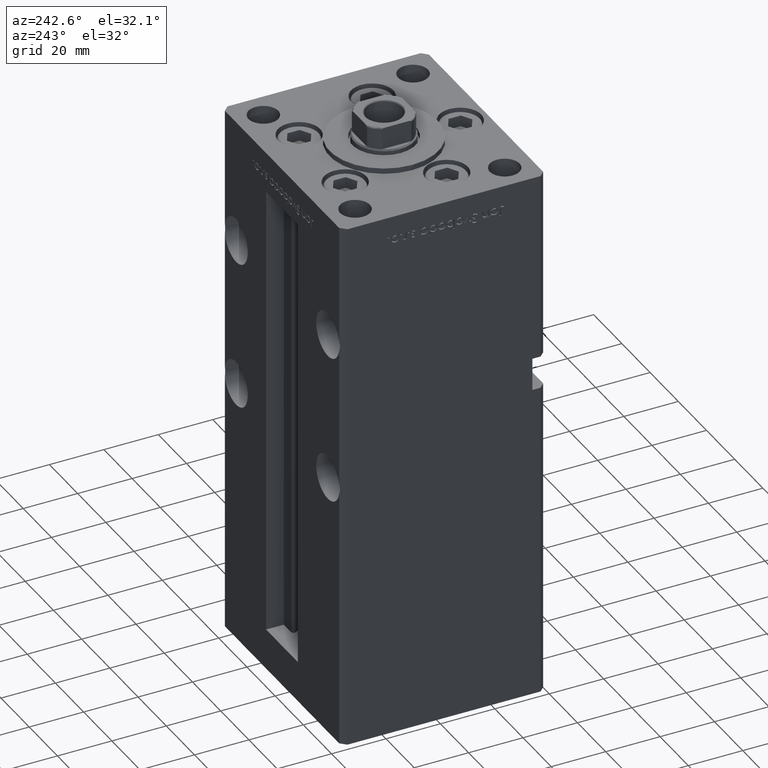
[diagram: clean part render]
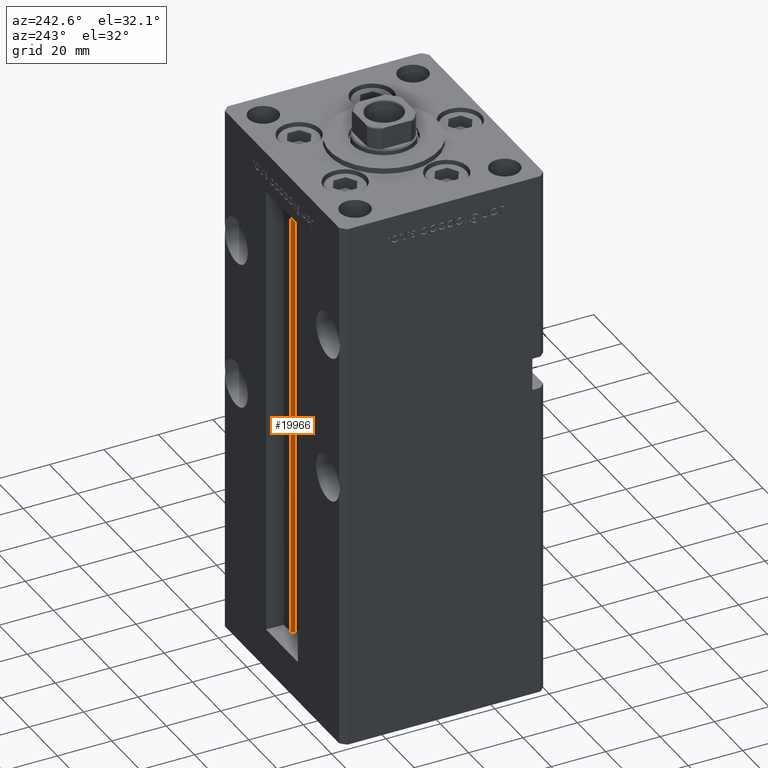
[diagram: same view with one face highlighted and labeled with its STEP entity id]
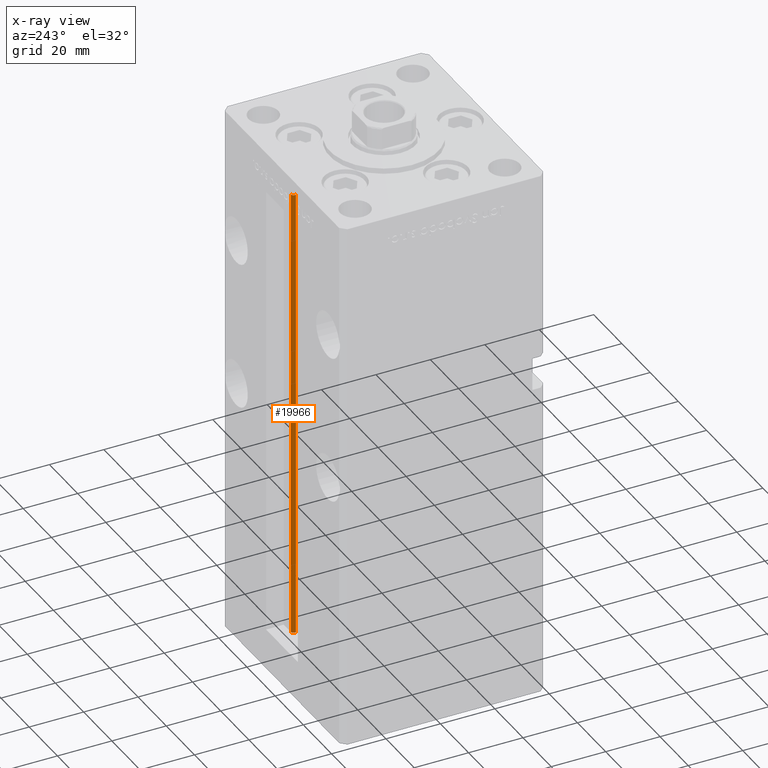
[diagram: x-ray of the same camera — body ghosted, the highlighted face saturated]
A machine part, auxiliary view. The second image highlights one B-rep face of the part: STEP entity #19966.
The next image is the same camera in x-ray: the body ghosted, the highlighted face saturated — about 0% of this face is hidden behind the body in this view.
In plain terms, the highlighted cylindrical surface (edge-blend (fillet) strip) has radius 0.9333 mm, axis along (0, 0, 1).
Its self-contained STEP definition (entity closure, byte-faithful):
#1054 = VECTOR ( 'NONE', #45562, 1000.000000000000000 ) ;
#6681 = ORIENTED_EDGE ( 'NONE', *, *, #42945, .F. ) ;
#6764 = DIRECTION ( 'NONE',  ( 1.000000000000000000, 0.000000000000000000, 0.000000000000000000 ) ) ;
#12728 = LINE ( 'NONE', #29146, #1054 ) ;
#13942 = DIRECTION ( 'NONE',  ( -0.000000000000000000, -0.000000000000000000, 1.000000000000000000 ) ) ;
#15032 = CARTESIAN_POINT ( 'NONE',  ( 6.183333333333997928, 31.00000000000000000, 168.5000000000000000 ) ) ;
#17983 = VECTOR ( 'NONE', #42470, 1000.000000000000000 ) ;
#18089 = DIRECTION ( 'NONE',  ( -0.000000000000000000, -0.000000000000000000, -1.000000000000000000 ) ) ;
#18264 = VERTEX_POINT ( 'NONE', #43700 ) ;
#18995 = ORIENTED_EDGE ( 'NONE', *, *, #28971, .T. ) ;
#19313 = VERTEX_POINT ( 'NONE', #36977 ) ;
#19966 = ADVANCED_FACE ( 'NONE', ( #23346 ), #39757, .T. ) ;
#20917 = CIRCLE ( 'NONE', #26936, 0.9333333333340008142 ) ;
#22094 = AXIS2_PLACEMENT_3D ( 'NONE', #42064, #18089, #34513 ) ;
#22754 = EDGE_CURVE ( 'NONE', #18264, #19313, #44395, .T. ) ;
#23346 = FACE_OUTER_BOUND ( 'NONE', #24496, .T. ) ;
#24496 = EDGE_LOOP ( 'NONE', ( #6681, #24881, #18995, #34771 ) ) ;
#24602 = VERTEX_POINT ( 'NONE', #29022 ) ;
#24881 = ORIENTED_EDGE ( 'NONE', *, *, #22754, .F. ) ;
#26333 = VERTEX_POINT ( 'NONE', #15032 ) ;
#26936 = AXIS2_PLACEMENT_3D ( 'NONE', #27201, #30721, #6764 ) ;
#27201 = CARTESIAN_POINT ( 'NONE',  ( 6.183333333333997928, 30.06666666666599852, 168.5000000000000000 ) ) ;
#28971 = EDGE_CURVE ( 'NONE', #18264, #24602, #38168, .T. ) ;
#29022 = CARTESIAN_POINT ( 'NONE',  ( 5.375042956467944499, 29.59999999999899600, 168.5000000000000000 ) ) ;
#29146 = CARTESIAN_POINT ( 'NONE',  ( 6.183333333333997928, 31.00000000000000000, 0.000000000000000000 ) ) ;
#30721 = DIRECTION ( 'NONE',  ( 0.000000000000000000, 0.000000000000000000, -1.000000000000000000 ) ) ;
#34513 = DIRECTION ( 'NONE',  ( 1.000000000000000000, 0.000000000000000000, 0.000000000000000000 ) ) ;
#34771 = ORIENTED_EDGE ( 'NONE', *, *, #45939, .T. ) ;
#34914 = CARTESIAN_POINT ( 'NONE',  ( 6.183333333333997928, 30.06666666666599852, 0.000000000000000000 ) ) ;
#36977 = CARTESIAN_POINT ( 'NONE',  ( 6.183333333333997928, 31.00000000000000000, 0.000000000000000000 ) ) ;
#38168 = LINE ( 'NONE', #41945, #17983 ) ;
#39757 = CYLINDRICAL_SURFACE ( 'NONE', #52924, 0.9333333333340008142 ) ;
#41945 = CARTESIAN_POINT ( 'NONE',  ( 5.375042956467947164, 29.59999999999899245, 0.000000000000000000 ) ) ;
#42064 = CARTESIAN_POINT ( 'NONE',  ( 6.183333333333997928, 30.06666666666599852, 0.000000000000000000 ) ) ;
#42470 = DIRECTION ( 'NONE',  ( -0.000000000000000000, -0.000000000000000000, 1.000000000000000000 ) ) ;
#42945 = EDGE_CURVE ( 'NONE', #19313, #26333, #12728, .T. ) ;
#43254 = DIRECTION ( 'NONE',  ( 1.000000000000000000, 0.000000000000000000, 0.000000000000000000 ) ) ;
#43700 = CARTESIAN_POINT ( 'NONE',  ( 5.375042956467947164, 29.59999999999899245, 0.000000000000000000 ) ) ;
#44395 = CIRCLE ( 'NONE', #22094, 0.9333333333340008142 ) ;
#45562 = DIRECTION ( 'NONE',  ( -0.000000000000000000, -0.000000000000000000, 1.000000000000000000 ) ) ;
#45939 = EDGE_CURVE ( 'NONE', #24602, #26333, #20917, .T. ) ;
#52924 = AXIS2_PLACEMENT_3D ( 'NONE', #34914, #13942, #43254 ) ;